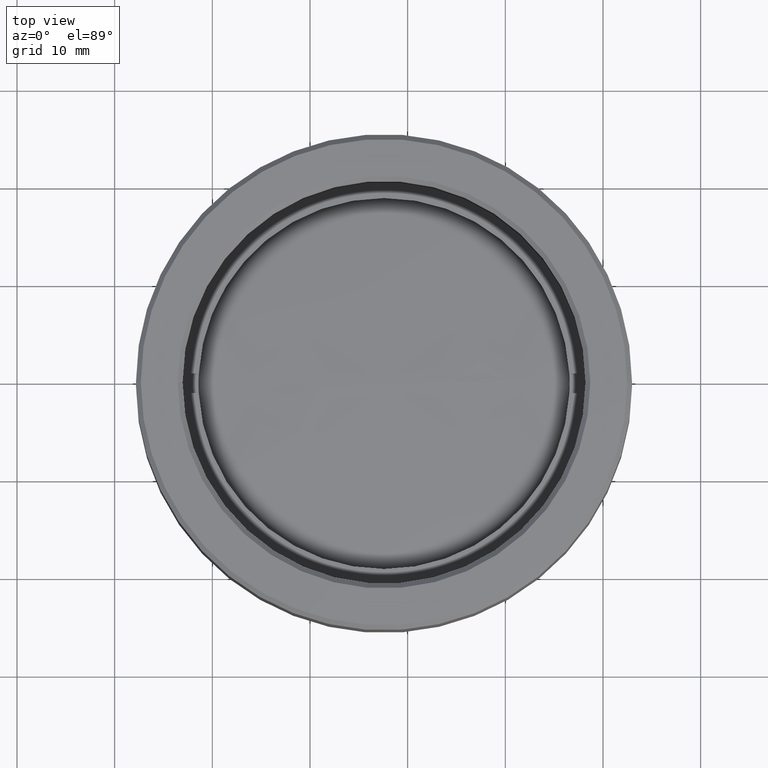
[diagram: clean part render]
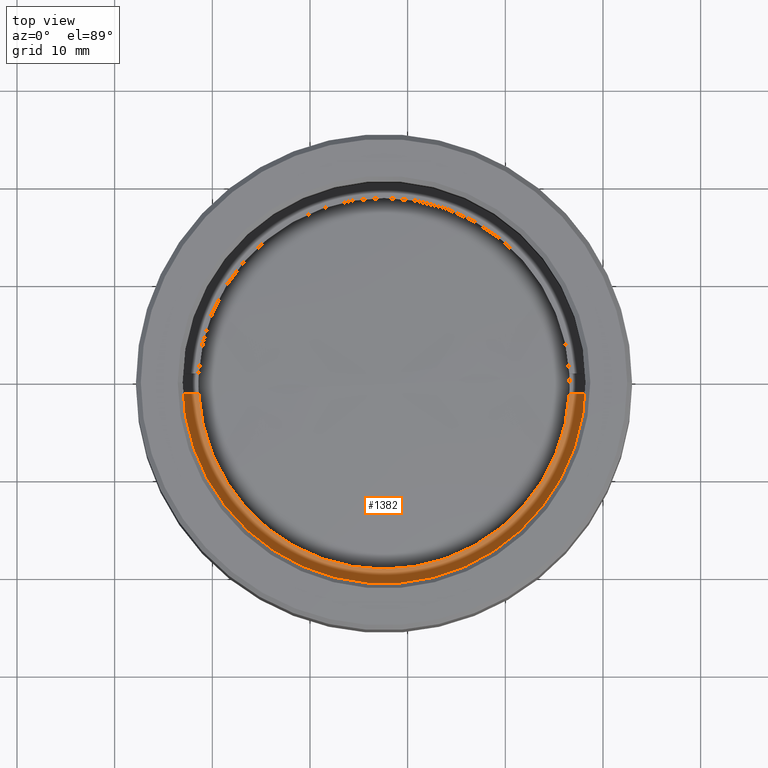
[diagram: same view with one face highlighted and labeled with its STEP entity id]
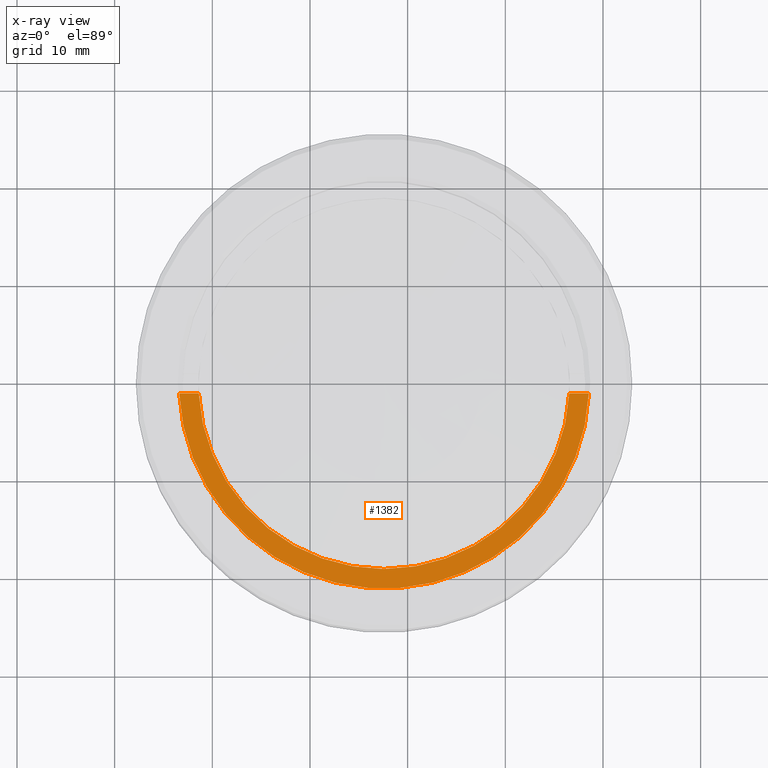
[diagram: x-ray of the same camera — body ghosted, the highlighted face saturated]
A machine part, top view. The second image highlights one B-rep face of the part: STEP entity #1382.
The next image is the same camera in x-ray: the body ghosted, the highlighted face saturated — about 0% of this face is hidden behind the body in this view.
In plain terms, the highlighted planar face has unit normal (0, 0, 1).
Its self-contained STEP definition (entity closure, byte-faithful):
#51 = CARTESIAN_POINT ( 'NONE',  ( -30.62185530834360492, -1.000000000000000000, 2.500000000000000000 ) ) ;
#116 = CARTESIAN_POINT ( 'NONE',  ( 0.000000000000000000, 0.000000000000000000, 2.500000000000000000 ) ) ;
#155 = CARTESIAN_POINT ( 'NONE',  ( -18.97366596101027625, -1.000000000000000000, 2.500000000000000000 ) ) ;
#175 = DIRECTION ( 'NONE',  ( 1.000000000000000000, 0.000000000000000000, 0.000000000000000000 ) ) ;
#189 = CARTESIAN_POINT ( 'NONE',  ( -20.97617696340303084, -1.000000000000000000, 2.500000000000000000 ) ) ;
#217 = AXIS2_PLACEMENT_3D ( 'NONE', #438, #561, #980 ) ;
#374 = ORIENTED_EDGE ( 'NONE', *, *, #1461, .F. ) ;
#376 = VECTOR ( 'NONE', #421, 1000.000000000000000 ) ;
#385 = EDGE_CURVE ( 'NONE', #950, #1298, #706, .T. ) ;
#387 = FACE_OUTER_BOUND ( 'NONE', #720, .T. ) ;
#395 = EDGE_CURVE ( 'NONE', #1447, #629, #1513, .T. ) ;
#421 = DIRECTION ( 'NONE',  ( 1.000000000000000000, 0.000000000000000000, 0.000000000000000000 ) ) ;
#430 = DIRECTION ( 'NONE',  ( 0.000000000000000000, 0.000000000000000000, 1.000000000000000000 ) ) ;
#438 = CARTESIAN_POINT ( 'NONE',  ( 0.000000000000000000, 0.000000000000000000, 2.500000000000000000 ) ) ;
#501 = ORIENTED_EDGE ( 'NONE', *, *, #395, .F. ) ;
#506 = EDGE_CURVE ( 'NONE', #950, #1447, #732, .T. ) ;
#561 = DIRECTION ( 'NONE',  ( 0.000000000000000000, 0.000000000000000000, 1.000000000000000000 ) ) ;
#629 = VERTEX_POINT ( 'NONE', #736 ) ;
#649 = CARTESIAN_POINT ( 'NONE',  ( -30.62185530834360492, -1.000000000000000000, 2.500000000000000000 ) ) ;
#706 = CIRCLE ( 'NONE', #217, 21.00000000000000000 ) ;
#720 = EDGE_LOOP ( 'NONE', ( #1535, #1300, #374, #501 ) ) ;
#732 = LINE ( 'NONE', #649, #758 ) ;
#736 = CARTESIAN_POINT ( 'NONE',  ( 18.97366596101027625, -1.000000000000000000, 2.500000000000000000 ) ) ;
#758 = VECTOR ( 'NONE', #946, 1000.000000000000000 ) ;
#809 = AXIS2_PLACEMENT_3D ( 'NONE', #1166, #430, #175 ) ;
#946 = DIRECTION ( 'NONE',  ( 1.000000000000000000, 0.000000000000000000, 0.000000000000000000 ) ) ;
#950 = VERTEX_POINT ( 'NONE', #189 ) ;
#980 = DIRECTION ( 'NONE',  ( 1.000000000000000000, 0.000000000000000000, 0.000000000000000000 ) ) ;
#1081 = CARTESIAN_POINT ( 'NONE',  ( 20.97617696340303084, -1.000000000000000000, 2.500000000000000000 ) ) ;
#1166 = CARTESIAN_POINT ( 'NONE',  ( 0.000000000000000000, 0.000000000000000000, 2.500000000000000000 ) ) ;
#1192 = DIRECTION ( 'NONE',  ( 1.000000000000000000, 0.000000000000000000, -0.000000000000000000 ) ) ;
#1298 = VERTEX_POINT ( 'NONE', #1081 ) ;
#1300 = ORIENTED_EDGE ( 'NONE', *, *, #385, .T. ) ;
#1382 = ADVANCED_FACE ( 'NONE', ( #387 ), #1732, .T. ) ;
#1447 = VERTEX_POINT ( 'NONE', #155 ) ;
#1461 = EDGE_CURVE ( 'NONE', #629, #1298, #1648, .T. ) ;
#1509 = AXIS2_PLACEMENT_3D ( 'NONE', #116, #1597, #1192 ) ;
#1513 = CIRCLE ( 'NONE', #809, 19.00000000000000000 ) ;
#1535 = ORIENTED_EDGE ( 'NONE', *, *, #506, .F. ) ;
#1597 = DIRECTION ( 'NONE',  ( 0.000000000000000000, 0.000000000000000000, 1.000000000000000000 ) ) ;
#1648 = LINE ( 'NONE', #51, #376 ) ;
#1732 = PLANE ( 'NONE',  #1509 ) ;